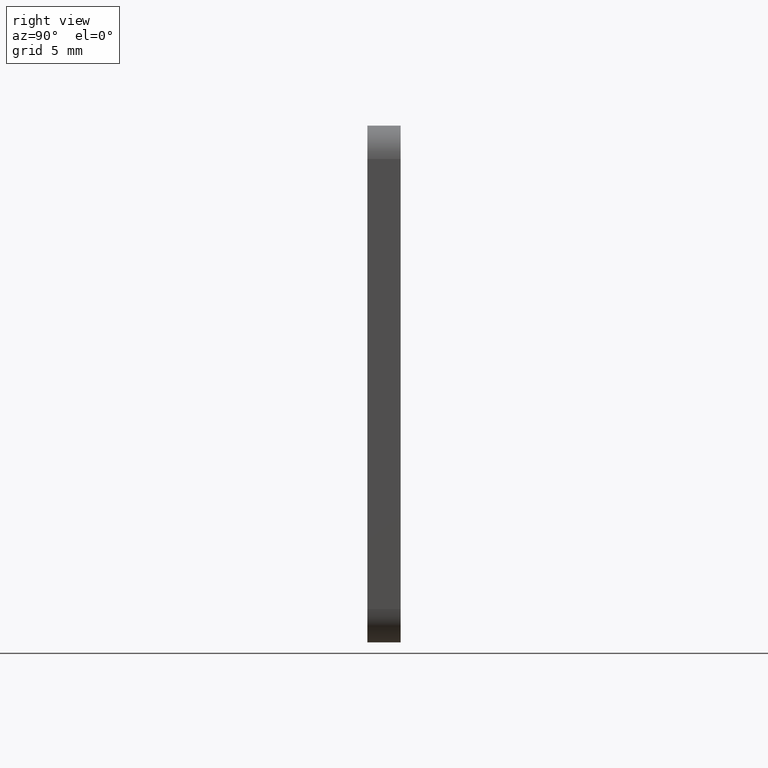
[diagram: clean part render]
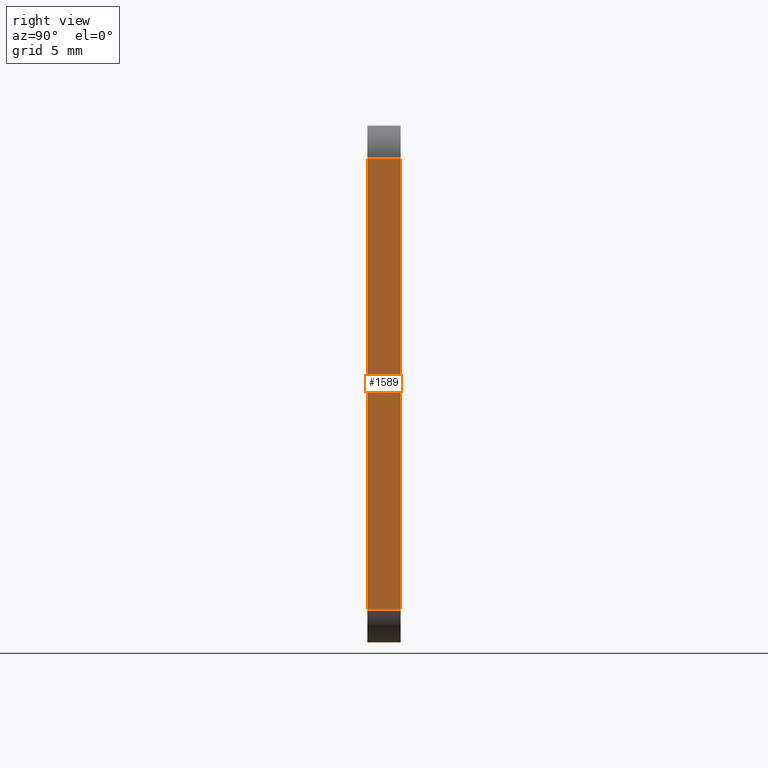
[diagram: same view with one face highlighted and labeled with its STEP entity id]
A machine part, right view. The second image highlights one B-rep face of the part: STEP entity #1589.
In plain terms, the highlighted planar face has unit normal (-1, 0, 0).
Its self-contained STEP definition (entity closure, byte-faithful):
#78 = CARTESIAN_POINT ( 'NONE',  ( 15.50000000000000500, 2.000000000000000000, 13.50000000000000700 ) ) ;
#266 = EDGE_CURVE ( 'NONE', #16198, #5144, #9571, .T. ) ;
#286 = FACE_OUTER_BOUND ( 'NONE', #17393, .T. ) ;
#1589 = ADVANCED_FACE ( 'NONE', ( #286 ), #7622, .F. ) ;
#1915 = ORIENTED_EDGE ( 'NONE', *, *, #8439, .T. ) ;
#2246 = VERTEX_POINT ( 'NONE', #10605 ) ;
#2608 = EDGE_CURVE ( 'NONE', #9876, #2246, #6563, .T. ) ;
#2828 = VECTOR ( 'NONE', #8498, 1000.000000000000000 ) ;
#2830 = CARTESIAN_POINT ( 'NONE',  ( 15.50000000000000200, 2.000000000000000000, -13.49999999999999800 ) ) ;
#3537 = VECTOR ( 'NONE', #4502, 1000.000000000000000 ) ;
#4502 = DIRECTION ( 'NONE',  ( -1.119176436114069100E-016, -0.0000000000000000000, -1.000000000000000000 ) ) ;
#4782 = ORIENTED_EDGE ( 'NONE', *, *, #2608, .T. ) ;
#4969 = DIRECTION ( 'NONE',  ( 1.119176436114069100E-016, 0.0000000000000000000, 1.000000000000000000 ) ) ;
#5037 = DIRECTION ( 'NONE',  ( -1.119176436114069100E-016, -0.0000000000000000000, -1.000000000000000000 ) ) ;
#5144 = VERTEX_POINT ( 'NONE', #11282 ) ;
#5687 = VECTOR ( 'NONE', #5037, 1000.000000000000000 ) ;
#6563 = LINE ( 'NONE', #2830, #13348 ) ;
#7384 = LINE ( 'NONE', #14371, #5687 ) ;
#7622 = PLANE ( 'NONE',  #7988 ) ;
#7866 = CARTESIAN_POINT ( 'NONE',  ( 15.50000000000000500, 2.000000000000000000, 13.50000000000000700 ) ) ;
#7988 = AXIS2_PLACEMENT_3D ( 'NONE', #13121, #14301, #4969 ) ;
#8439 = EDGE_CURVE ( 'NONE', #5144, #9876, #7384, .T. ) ;
#8498 = DIRECTION ( 'NONE',  ( 0.0000000000000000000, -1.000000000000000000, 0.0000000000000000000 ) ) ;
#9571 = LINE ( 'NONE', #78, #2828 ) ;
#9876 = VERTEX_POINT ( 'NONE', #17357 ) ;
#9878 = LINE ( 'NONE', #12585, #3537 ) ;
#10605 = CARTESIAN_POINT ( 'NONE',  ( 15.50000000000000200, 2.000000000000000000, -13.49999999999999800 ) ) ;
#10818 = ORIENTED_EDGE ( 'NONE', *, *, #16436, .F. ) ;
#10916 = ORIENTED_EDGE ( 'NONE', *, *, #266, .T. ) ;
#11282 = CARTESIAN_POINT ( 'NONE',  ( 15.50000000000000500, 0.0000000000000000000, 13.50000000000000700 ) ) ;
#12254 = DIRECTION ( 'NONE',  ( -0.0000000000000000000, 1.000000000000000000, -0.0000000000000000000 ) ) ;
#12585 = CARTESIAN_POINT ( 'NONE',  ( 15.50000000000000200, 2.000000000000000000, -15.49999999999999800 ) ) ;
#13121 = CARTESIAN_POINT ( 'NONE',  ( 15.50000000000000200, 2.000000000000000000, -15.49999999999999800 ) ) ;
#13348 = VECTOR ( 'NONE', #12254, 1000.000000000000000 ) ;
#14301 = DIRECTION ( 'NONE',  ( -1.000000000000000000, 0.0000000000000000000, 1.119176436114069100E-016 ) ) ;
#14371 = CARTESIAN_POINT ( 'NONE',  ( 15.50000000000000200, 0.0000000000000000000, -15.49999999999999800 ) ) ;
#16198 = VERTEX_POINT ( 'NONE', #7866 ) ;
#16436 = EDGE_CURVE ( 'NONE', #16198, #2246, #9878, .T. ) ;
#17357 = CARTESIAN_POINT ( 'NONE',  ( 15.50000000000000200, 0.0000000000000000000, -13.49999999999999800 ) ) ;
#17393 = EDGE_LOOP ( 'NONE', ( #1915, #4782, #10818, #10916 ) ) ;